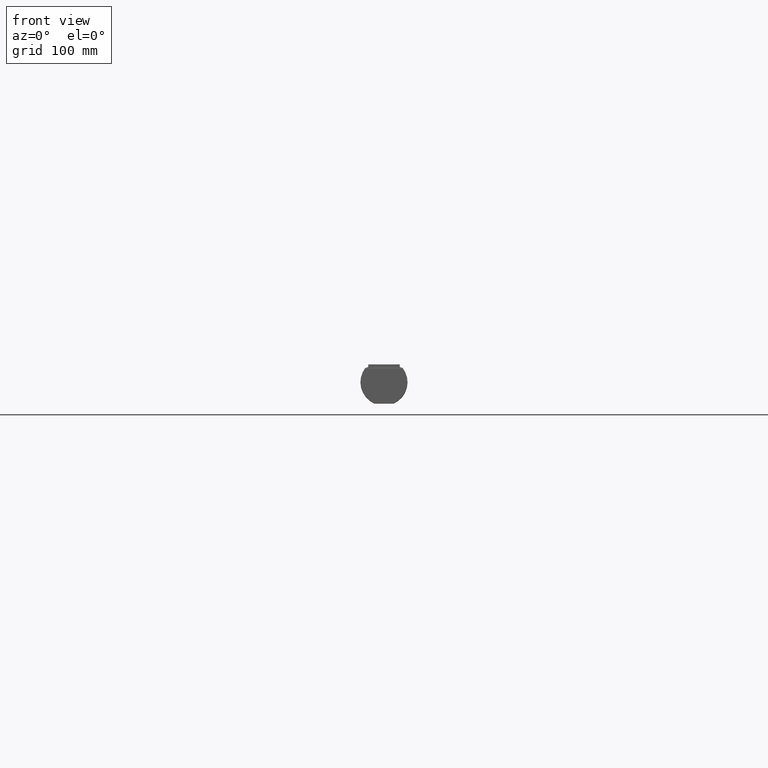
[diagram: clean part render]
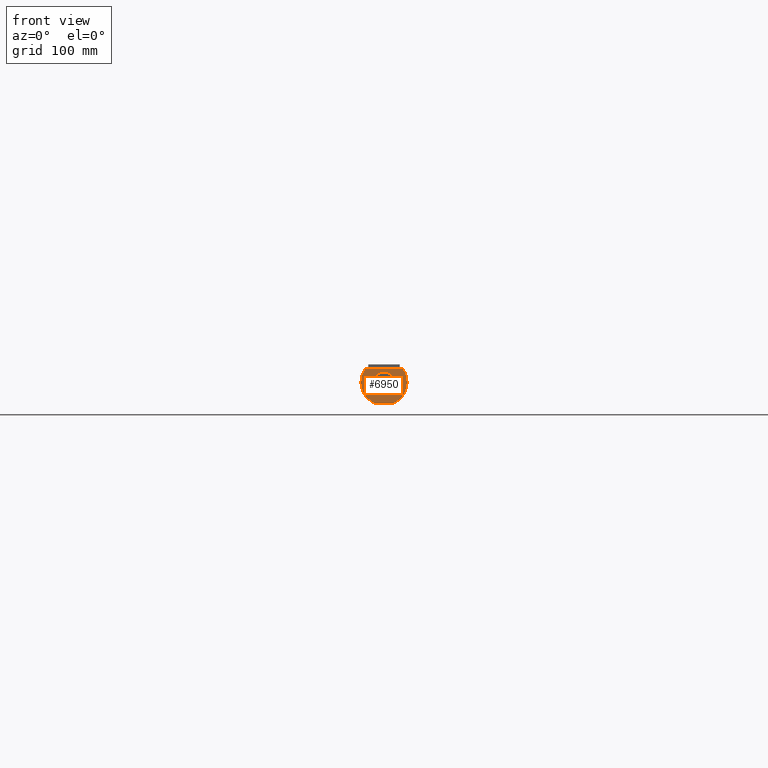
[diagram: same view with one face highlighted and labeled with its STEP entity id]
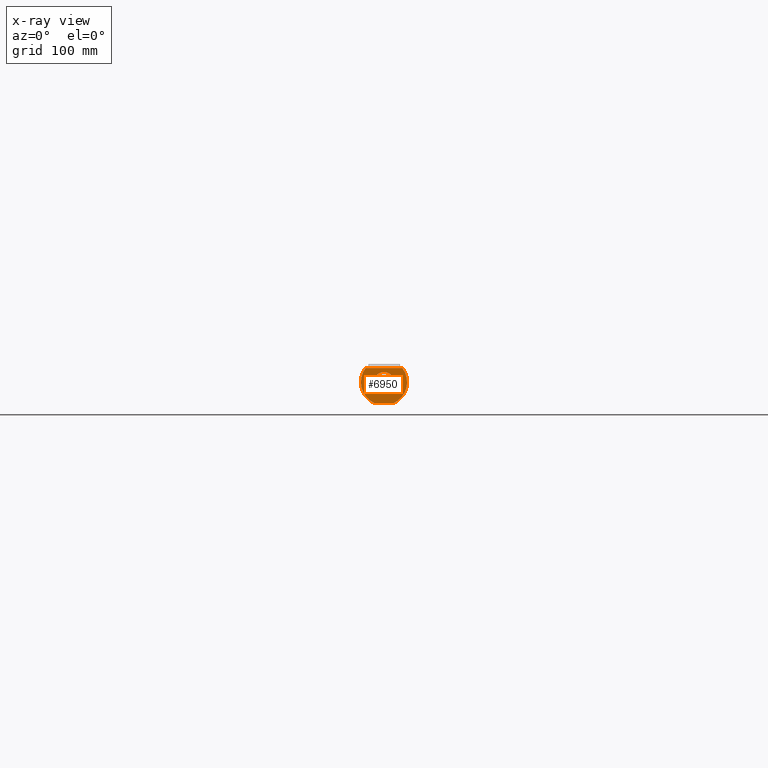
[diagram: x-ray of the same camera — body ghosted, the highlighted face saturated]
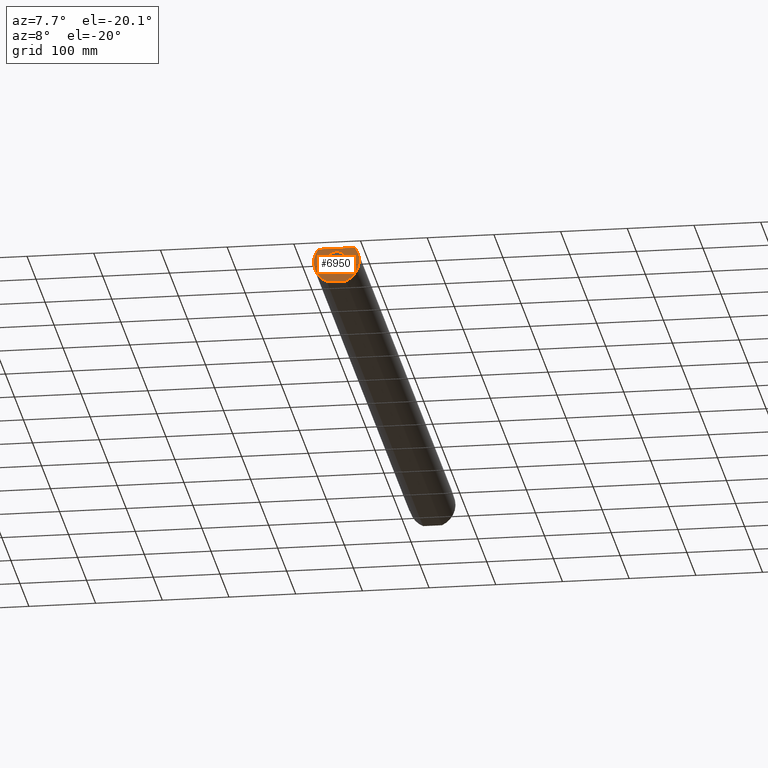
[diagram: same view with one face highlighted and labeled with its STEP entity id]
A machine part, front view. The second image highlights one B-rep face of the part: STEP entity #6950.
The next image is the same camera in x-ray: the body ghosted, the highlighted face saturated — about 0% of this face is hidden behind the body in this view.
A second angle (auxiliary view) of the same face is appended — the face is thin or edge-on in the first view.
In plain terms, the highlighted planar face has unit normal (0, -1, 0).
Its self-contained STEP definition (entity closure, byte-faithful):
#6190=CARTESIAN_POINT('',(-15.,7.7715611723761E-15,1.99999999999999));
#6200=VERTEX_POINT('',#6190);
#6280=CARTESIAN_POINT('',(15.,9.60853137109712E-15,1.99999999999999));
#6290=VERTEX_POINT('',#6280);
#6320=CARTESIAN_POINT('',(-2.55698240358981E-14,7.7715611723761E-15,
1.99999999999999));
#6330=DIRECTION('',(0.,0.,1.));
#6340=DIRECTION('',(-1.,0.,0.));
#6350=AXIS2_PLACEMENT_3D('',#6320,#6330,#6340);
#6360=CIRCLE('',#6350,15.);
#6370=EDGE_CURVE('',#6290,#6200,#6360,.T.);
#6490=CARTESIAN_POINT('',(64.1216655749841,-36.4701789509306,
1.99999999999999));
#6500=DIRECTION('',(0.,0.,-1.));
#6510=DIRECTION('',(-1.,0.,0.));
#6520=AXIS2_PLACEMENT_3D('',#6490,#6500,#6510);
#6530=PLANE('',#6520);
#6540=CARTESIAN_POINT('',(5.26957199364745E-15,2.72659812980485E-14,
2.00000000000019));
#6550=DIRECTION('',(-5.32545121688433E-15,-6.06186229840581E-15,-1.));
#6560=DIRECTION('',(0.,1.,-6.06186229840581E-15));
#6570=AXIS2_PLACEMENT_3D('',#6540,#6550,#6560);
#6580=CIRCLE('',#6570,34.2668157924422);
#6590=CARTESIAN_POINT('',(-14.0214441037524,-31.2668157924422,2.));
#6600=VERTEX_POINT('',#6590);
#6610=CARTESIAN_POINT('',(-27.2571830238552,20.7668157924421,
1.99999999999977));
#6620=VERTEX_POINT('',#6610);
#6630=EDGE_CURVE('',#6600,#6620,#6580,.T.);
#6640=ORIENTED_EDGE('',*,*,#6630,.T.);
#6650=CARTESIAN_POINT('',(0.,-31.2668157924422,1.99999999999999));
#6660=DIRECTION('',(1.,0.,0.));
#6670=VECTOR('',#6660,1.);
#6680=LINE('',#6650,#6670);
#6690=CARTESIAN_POINT('',(14.0214441037524,-31.2668157924422,
1.99999999999989));
#6700=VERTEX_POINT('',#6690);
#6710=EDGE_CURVE('',#6600,#6700,#6680,.T.);
#6720=ORIENTED_EDGE('',*,*,#6710,.F.);
#6730=CARTESIAN_POINT('',(4.74026073432177E-14,-3.91630732505904E-14,
1.99999999999956));
#6740=DIRECTION('',(7.58459727986603E-15,2.83632305370342E-15,-1.));
#6750=DIRECTION('',(1.,0.,7.58459727986603E-15));
#6760=AXIS2_PLACEMENT_3D('',#6730,#6740,#6750);
#6770=CIRCLE('',#6760,34.2668157924421);
#6780=CARTESIAN_POINT('',(27.2571830238552,20.7668157924422,
1.99999999999999));
#6790=VERTEX_POINT('',#6780);
#6800=EDGE_CURVE('',#6790,#6700,#6770,.T.);
#6810=ORIENTED_EDGE('',*,*,#6800,.T.);
#6820=CARTESIAN_POINT('',(0.,20.7668157924421,1.99999999999999));
#6830=DIRECTION('',(1.,0.,0.));
#6840=VECTOR('',#6830,1.);
#6850=LINE('',#6820,#6840);
#6860=EDGE_CURVE('',#6620,#6790,#6850,.T.);
#6870=ORIENTED_EDGE('',*,*,#6860,.T.);
#6880=EDGE_LOOP('',(#6870,#6810,#6720,#6640));
#6890=FACE_OUTER_BOUND('',#6880,.T.);
#6900=EDGE_CURVE('',#6200,#6290,#6360,.T.);
#6910=ORIENTED_EDGE('',*,*,#6900,.T.);
#6920=ORIENTED_EDGE('',*,*,#6370,.T.);
#6930=EDGE_LOOP('',(#6920,#6910));
#6940=FACE_BOUND('',#6930,.T.);
#6950=ADVANCED_FACE('',(#6890,#6940),#6530,.T.);